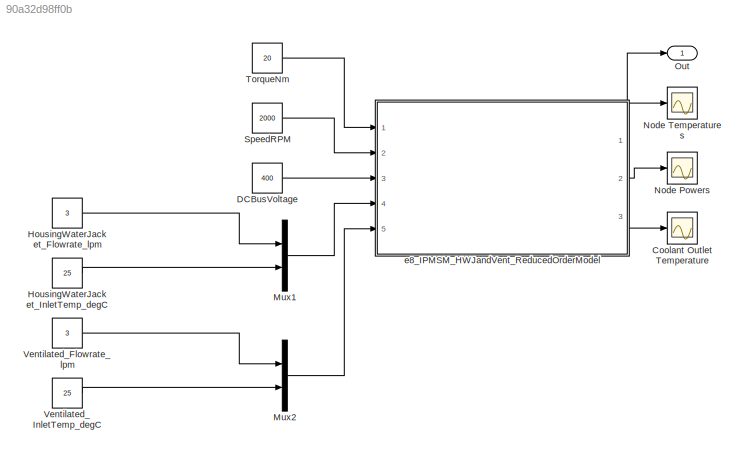
MODEL slx_90a32d98ff0b
KIND model
CONFIG AbsTol = 1e-3
CONFIG EnableMultiTasking = off
CONFIG FixedStep = auto
CONFIG MaxStep = auto
CONFIG MinStep = auto
CONFIG RelTol = 1e-3
CONFIG SampleTimeConstraint = Unconstrained
CONFIG SolverName = VariableStepAuto
CONFIG StartTime = 0.0
CONFIG StopTime = 1000
WORKSPACE source: mxarray member
WORKSPACE AdjacencyMat = [0 0 0 0 0 0 0 0 0 0 0 0 ... (15129 elements, 123x123)]
WORKSPACE Banding_Loss_Mat = [0 0 0 0 0 0 0 0 0 0 0 0 ... (7020 elements, 39x60x3)]
WORKSPACE CapMat = [1e+20 2196.70091586 387.653102799 193.8265514 1962.34710525 387.653102799 193.8265514 1962.34710525 1266.59353814 268.053957132 416.539515956 175.715078 ... (123 elements, 123x1)]
WORKSPACE CoolantArrayIdxs = [20 21 22 23 24 25 26 27 35 36 37 84 ... (19 elements, 19x1)]
WORKSPACE DCBusVoltageVec = [200 300 400]
WORKSPACE Friction_Loss_Mat = [0 0 0 0 0 0 0 0 0 0 0 0 ... (7020 elements, 39x60x3)]
WORKSPACE InletCoolIdxs = [38 37]
WORKSPACE Iron_Loss_Rotor_Back_Iron_Mat = [0.0117705351991 0.0204390240307 0.0248508325185 0.0256457032681 0.0238785055856 0.020530699908 0.0166089076031 0.0132296142351 0.0115805086727 0.0121981902442 0.0144548234671 0.0172622621719 ... (7020 elements, 39x60x3)]
WORKSPACE Iron_Loss_Rotor_Pole_Mat = [1.45649756865 1.45220158629 1.42754923451 1.38825604934 1.33915333349 1.28386605183 1.22530180492 1.16593914393 1.10785564554 1.05188090135 0.997097257278 0.941639677474 ... (7020 elements, 39x60x3)]
WORKSPACE Iron_Loss_Rotor_Tooth_Mat = [0 0 0 0 0 0 0 0 0 0 0 0 ... (7020 elements, 39x60x3)]
WORKSPACE Iron_Loss_Stator_Back_Iron_Mat = [38.5419456951 37.7152025365 36.7151009719 35.6149517682 34.4520386289 33.2585547415 32.0665067995 30.91142079 29.8301048499 28.8255844376 27.8319778373 26.7434652419 ... (7020 elements, 39x60x3)]
WORKSPACE Iron_Loss_Stator_Tooth_Mat = [42.0610884508 40.9832240847 40.1258499541 39.3817529075 38.6582544091 37.9130136221 37.1370624807 36.3449214788 35.5617649366 34.7840580455 33.951564889 32.9872940506 ... (7020 elements, 39x60x3)]
WORKSPACE LossDistrForEachType = [0 0 0 0 0 0 0 0 0 0 0 0 ... (2952 elements, 24x123)]
WORKSPACE Magnet_Loss_Mat = [0.0995193918038 0.0923780277949 0.0864844160887 0.0815810725061 0.0772064600726 0.0729767275694 0.0685055432332 0.0633314716331 0.0569179480863 0.0491401889658 0.0406359949749 0.0323130751847 ... (7020 elements, 39x60x3)]
WORKSPACE OutletCoolIdxs = [107 20 107 22 107 23]
WORKSPACE RotorCopperTempCoefResistivity = 0.00393
WORKSPACE Rotor_Cage_Loss_Mat = [0 0 0 0 0 0 0 0 0 0 0 0 ... (7020 elements, 39x60x3)]
WORKSPACE ShaftTorqueVec = [-286.936099977 -271.951133863 -256.966167748 -241.981201634 -226.99623552 -212.011269406 -197.026303292 -182.041337178 -167.056371063 -152.071404949 -137.086438835 -122.101472721 ... (39 elements, 1x39)]
WORKSPACE Sleeve_Loss_Mat = [0 0 0 0 0 0 0 0 0 0 0 0 ... (7020 elements, 39x60x3)]
WORKSPACE SpeedVec = [500 661.016949153 822.033898305 983.050847458 1144.06779661 1305.08474576 1466.10169492 1627.11864407 1788.13559322 1949.15254237 2110.16949153 2271.18644068 ... (60 elements, 1x60)]
WORKSPACE StateSpaceND: object (value not decoded)
WORKSPACE StatorCopperTempCoefResistivity = 0.00393
WORKSPACE Stator_Copper_Loss_AC_Mat = [0 0 0 0 0 0 0 0 0 0 0 0 ... (7020 elements, 39x60x3)]
WORKSPACE Stator_Copper_Loss_Mat = [3925.33912093 3478.13441392 3061.95534758 2688.26015542 2350.64396183 2044.39353286 1765.95289325 1512.57803512 1282.11615226 1072.87404999 883.521113045 712.988793321 ... (7020 elements, 39x60x3)]
WORKSPACE Stray_Load_Loss_Mat = [0 0 0 0 0 0 0 0 0 0 0 0 ... (7020 elements, 39x60x3)]
WORKSPACE Stray_Loss_Stator_Iron_Proportion = 0.95
WORKSPACE TnodesInit = [25 25 25 25 25 25 25 25 25 25 25 25 ... (123 elements, 123x1)]
WORKSPACE TrefRotor = 20
WORKSPACE TrefStator = 20
WORKSPACE Windage_Loss_Mat = [0 0 0 0 0 0 0 0 0 0 0 0 ... (7020 elements, 39x60x3)]
BLOCK [Scope] Coolant Outlet Temperature
  Floating = off
  NumInputPorts = 1
  Ports = [1]
BLOCK [Constant] DCBusVoltage
  Value = 400
BLOCK [Constant] HousingWaterJacket_Flowrate_lpm
  Value = 3
BLOCK [Constant] HousingWaterJacket_InletTemp_degC
  Value = 25
BLOCK [Mux] Mux1
  DisplayOption = bar
  Inputs = 2
  Ports = [2, 1]
BLOCK [Mux] Mux2
  DisplayOption = bar
  Inputs = 2
  Ports = [2, 1]
BLOCK [Scope] Node Powers
  Floating = off
  NumInputPorts = 1
  Ports = [1]
BLOCK [Scope] Node Temperatures
  Floating = off
  NumInputPorts = 1
  Ports = [1]
BLOCK [Outport] Out
BLOCK [Constant] SpeedRPM
  Value = 2000
BLOCK [Constant] TorqueNm
  Value = 20
BLOCK [Constant] Ventilated_Flowrate_lpm
  Value = 3
BLOCK [Constant] Ventilated_InletTemp_degC
  Value = 25
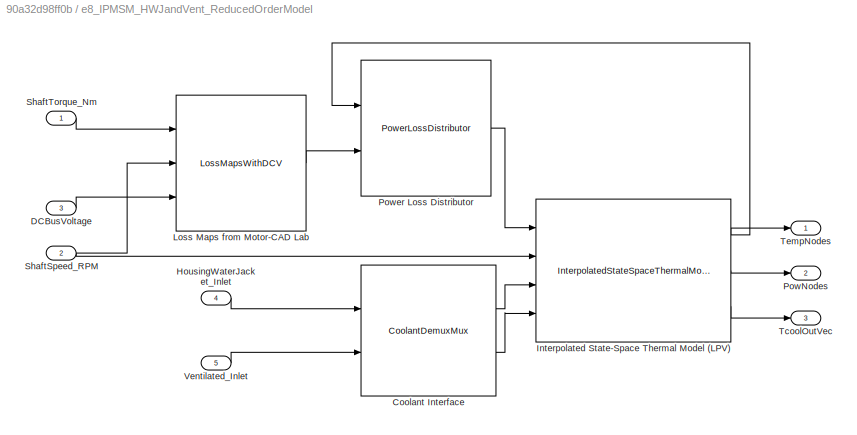
BLOCK [SubSystem] e8_IPMSM_HWJandVent_ReducedOrderModel
  Ports = [5, 3]
  RequestExecContextInheritance = off
BLOCK [Reference] e8_IPMSM_HWJandVent_ReducedOrderModel/Coolant Interface  REF=mcadROM_lib/CoolantDemuxMux
  Ports = [2, 2]
  SourceBlock = mcadROM_lib/CoolantDemuxMux
BLOCK [Inport] e8_IPMSM_HWJandVent_ReducedOrderModel/DCBusVoltage
  Port = 3
BLOCK [Inport] e8_IPMSM_HWJandVent_ReducedOrderModel/HousingWaterJacket_Inlet
  Port = 4
BLOCK [Reference] e8_IPMSM_HWJandVent_ReducedOrderModel/Interpolated State-Space Thermal Model (LPV)  REF=mcadROM_lib/InterpolatedStateSpaceThermalModel (LPV)
  Ports = [4, 3]
  SourceBlock = mcadROM_lib/InterpolatedStateSpaceThermalModel (LPV)
BLOCK [Reference] e8_IPMSM_HWJandVent_ReducedOrderModel/Loss Maps from Motor-CAD Lab  REF=mcadROM_lib/LossMapsWithDCV
  Ports = [3, 1]
  SourceBlock = mcadROM_lib/LossMapsWithDCV
BLOCK [Outport] e8_IPMSM_HWJandVent_ReducedOrderModel/PowNodes
  Port = 2
BLOCK [Reference] e8_IPMSM_HWJandVent_ReducedOrderModel/Power Loss Distributor  REF=mcadROM_lib/PowerLossDistributor
  Ports = [2, 1]
  SourceBlock = mcadROM_lib/PowerLossDistributor
BLOCK [Inport] e8_IPMSM_HWJandVent_ReducedOrderModel/ShaftSpeed_RPM
  Port = 2
BLOCK [Inport] e8_IPMSM_HWJandVent_ReducedOrderModel/ShaftTorque_Nm
BLOCK [Outport] e8_IPMSM_HWJandVent_ReducedOrderModel/TcoolOutVec
  Port = 3
BLOCK [Outport] e8_IPMSM_HWJandVent_ReducedOrderModel/TempNodes
BLOCK [Inport] e8_IPMSM_HWJandVent_ReducedOrderModel/Ventilated_Inlet
  Port = 5
LINE DCBusVoltage:1 -> e8_IPMSM_HWJandVent_ReducedOrderModel:3
LINE HousingWaterJacket_Flowrate_lpm:1 -> Mux1:1
LINE HousingWaterJacket_InletTemp_degC:1 -> Mux1:2
LINE Mux1:1 -> e8_IPMSM_HWJandVent_ReducedOrderModel:4
LINE Mux2:1 -> e8_IPMSM_HWJandVent_ReducedOrderModel:5
LINE SpeedRPM:1 -> e8_IPMSM_HWJandVent_ReducedOrderModel:2
LINE TorqueNm:1 -> e8_IPMSM_HWJandVent_ReducedOrderModel:1
LINE Ventilated_Flowrate_lpm:1 -> Mux2:1
LINE Ventilated_InletTemp_degC:1 -> Mux2:2
LINE e8_IPMSM_HWJandVent_ReducedOrderModel/Coolant Interface:1 -> e8_IPMSM_HWJandVent_ReducedOrderModel/Interpolated State-Space Thermal Model (LPV):3
LINE e8_IPMSM_HWJandVent_ReducedOrderModel/Coolant Interface:2 -> e8_IPMSM_HWJandVent_ReducedOrderModel/Interpolated State-Space Thermal Model (LPV):4
LINE e8_IPMSM_HWJandVent_ReducedOrderModel/DCBusVoltage:1 -> e8_IPMSM_HWJandVent_ReducedOrderModel/Loss Maps from Motor-CAD Lab:3
LINE e8_IPMSM_HWJandVent_ReducedOrderModel/HousingWaterJacket_Inlet:1 -> e8_IPMSM_HWJandVent_ReducedOrderModel/Coolant Interface:1
NET e8_IPMSM_HWJandVent_ReducedOrderModel/Interpolated State-Space Thermal Model (LPV):1 -> e8_IPMSM_HWJandVent_ReducedOrderModel/Power Loss Distributor:1, e8_IPMSM_HWJandVent_ReducedOrderModel/TempNodes:1
LINE e8_IPMSM_HWJandVent_ReducedOrderModel/Interpolated State-Space Thermal Model (LPV):2 -> e8_IPMSM_HWJandVent_ReducedOrderModel/PowNodes:1
LINE e8_IPMSM_HWJandVent_ReducedOrderModel/Interpolated State-Space Thermal Model (LPV):3 -> e8_IPMSM_HWJandVent_ReducedOrderModel/TcoolOutVec:1
LINE e8_IPMSM_HWJandVent_ReducedOrderModel/Loss Maps from Motor-CAD Lab:1 -> e8_IPMSM_HWJandVent_ReducedOrderModel/Power Loss Distributor:2
LINE e8_IPMSM_HWJandVent_ReducedOrderModel/Power Loss Distributor:1 -> e8_IPMSM_HWJandVent_ReducedOrderModel/Interpolated State-Space Thermal Model (LPV):1
NET e8_IPMSM_HWJandVent_ReducedOrderModel/ShaftSpeed_RPM:1 -> e8_IPMSM_HWJandVent_ReducedOrderModel/Interpolated State-Space Thermal Model (LPV):2, e8_IPMSM_HWJandVent_ReducedOrderModel/Loss Maps from Motor-CAD Lab:2
LINE e8_IPMSM_HWJandVent_ReducedOrderModel/ShaftTorque_Nm:1 -> e8_IPMSM_HWJandVent_ReducedOrderModel/Loss Maps from Motor-CAD Lab:1
LINE e8_IPMSM_HWJandVent_ReducedOrderModel/Ventilated_Inlet:1 -> e8_IPMSM_HWJandVent_ReducedOrderModel/Coolant Interface:2
NET e8_IPMSM_HWJandVent_ReducedOrderModel:1 -> Node Temperatures:1, Out:1
LINE e8_IPMSM_HWJandVent_ReducedOrderModel:2 -> Node Powers:1
LINE e8_IPMSM_HWJandVent_ReducedOrderModel:3 -> Coolant Outlet Temperature:1
note: NET lines group one-source signal fan-out (src -> all destinations, sorted); 1:1 wires keep LINE
